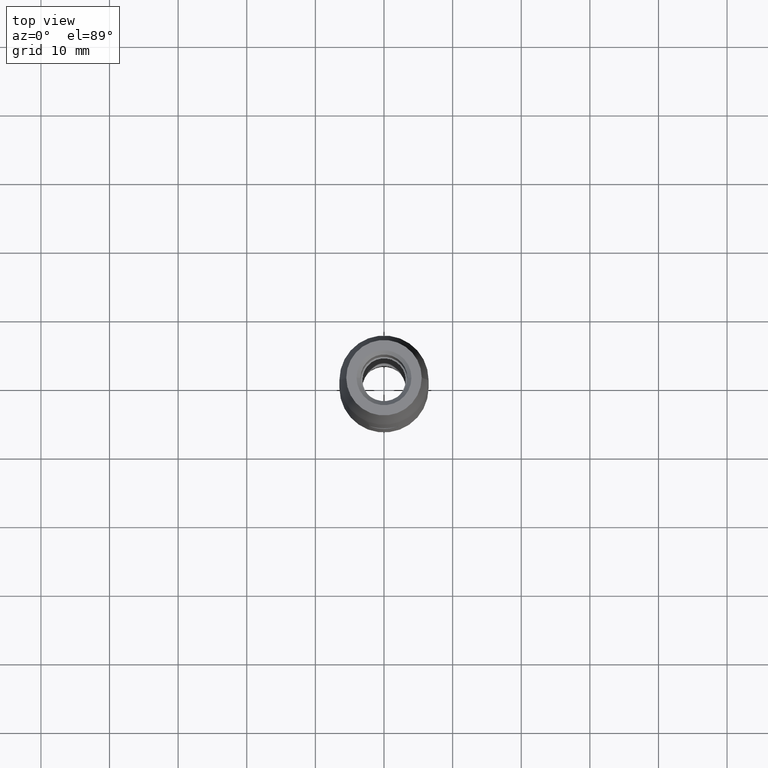
[diagram: clean part render]
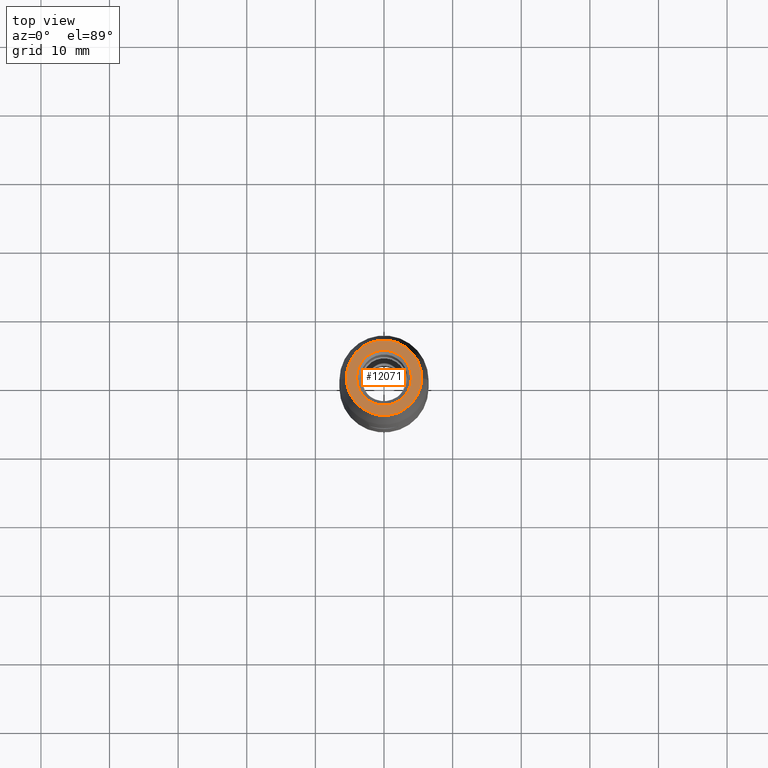
[diagram: same view with one face highlighted and labeled with its STEP entity id]
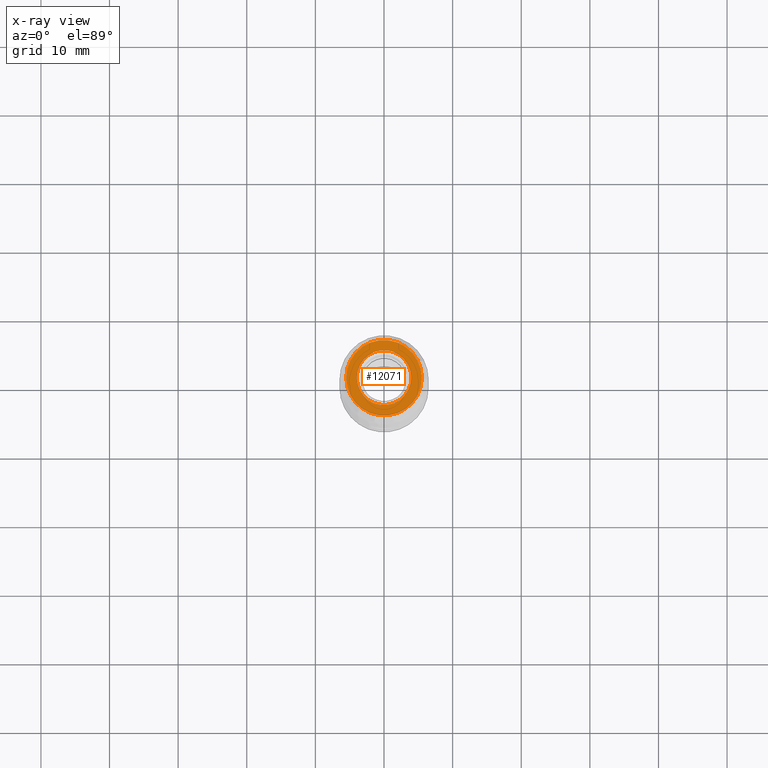
[diagram: x-ray of the same camera — body ghosted, the highlighted face saturated]
A machine part, top view. The second image highlights one B-rep face of the part: STEP entity #12071.
The next image is the same camera in x-ray: the body ghosted, the highlighted face saturated — about 0% of this face is hidden behind the body in this view.
In plain terms, the highlighted planar face has unit normal (0, 0, -1).
Its self-contained STEP definition (entity closure, byte-faithful):
#173 = DIRECTION ( 'NONE',  ( 0.0000000000000000000, 0.0000000000000000000, -1.000000000000000000 ) ) ;
#309 = FACE_OUTER_BOUND ( 'NONE', #11373, .T. ) ;
#358 = CIRCLE ( 'NONE', #417, 5.500000000000000000 ) ;
#417 = AXIS2_PLACEMENT_3D ( 'NONE', #3006, #6975, #7995 ) ;
#463 = CARTESIAN_POINT ( 'NONE',  ( 5.500000000000000000, 7.347880794884114800E-016, 52.50000000000000000 ) ) ;
#647 = DIRECTION ( 'NONE',  ( -0.0000000000000000000, -0.0000000000000000000, 1.000000000000000000 ) ) ;
#1139 = EDGE_LOOP ( 'NONE', ( #1296, #6574 ) ) ;
#1296 = ORIENTED_EDGE ( 'NONE', *, *, #2030, .T. ) ;
#1572 = CARTESIAN_POINT ( 'NONE',  ( 0.0000000000000000000, 0.0000000000000000000, 52.50000000000000000 ) ) ;
#1937 = CARTESIAN_POINT ( 'NONE',  ( 0.0000000000000000000, 0.0000000000000000000, 52.50000000000000700 ) ) ;
#2030 = EDGE_CURVE ( 'NONE', #10782, #3606, #2611, .T. ) ;
#2350 = DIRECTION ( 'NONE',  ( -1.000000000000000000, 0.0000000000000000000, 0.0000000000000000000 ) ) ;
#2611 = CIRCLE ( 'NONE', #4028, 4.000000000000017800 ) ;
#2718 = AXIS2_PLACEMENT_3D ( 'NONE', #1572, #647, #9682 ) ;
#2987 = EDGE_CURVE ( 'NONE', #3606, #10782, #11610, .T. ) ;
#3006 = CARTESIAN_POINT ( 'NONE',  ( 0.0000000000000000000, 0.0000000000000000000, 52.50000000000000000 ) ) ;
#3467 = DIRECTION ( 'NONE',  ( -1.000000000000000000, 0.0000000000000000000, -0.0000000000000000000 ) ) ;
#3606 = VERTEX_POINT ( 'NONE', #7872 ) ;
#3647 = DIRECTION ( 'NONE',  ( -1.000000000000000000, 0.0000000000000000000, 0.0000000000000000000 ) ) ;
#4028 = AXIS2_PLACEMENT_3D ( 'NONE', #4283, #173, #2350 ) ;
#4283 = CARTESIAN_POINT ( 'NONE',  ( 0.0000000000000000000, 0.0000000000000000000, 52.50000000000000700 ) ) ;
#5036 = FACE_BOUND ( 'NONE', #1139, .T. ) ;
#5392 = CARTESIAN_POINT ( 'NONE',  ( 4.000000000000017800, 0.0000000000000000000, 52.50000000000000700 ) ) ;
#5980 = DIRECTION ( 'NONE',  ( 0.0000000000000000000, 0.0000000000000000000, -1.000000000000000000 ) ) ;
#6574 = ORIENTED_EDGE ( 'NONE', *, *, #2987, .T. ) ;
#6841 = AXIS2_PLACEMENT_3D ( 'NONE', #1937, #5980, #3647 ) ;
#6931 = CIRCLE ( 'NONE', #2718, 5.500000000000000000 ) ;
#6975 = DIRECTION ( 'NONE',  ( -0.0000000000000000000, -0.0000000000000000000, 1.000000000000000000 ) ) ;
#7231 = EDGE_CURVE ( 'NONE', #9774, #8707, #358, .T. ) ;
#7872 = CARTESIAN_POINT ( 'NONE',  ( -4.000000000000017800, 4.898587196589434500E-016, 52.50000000000000700 ) ) ;
#7995 = DIRECTION ( 'NONE',  ( 1.000000000000000000, 0.0000000000000000000, 0.0000000000000000000 ) ) ;
#8381 = PLANE ( 'NONE',  #11934 ) ;
#8707 = VERTEX_POINT ( 'NONE', #12662 ) ;
#8855 = ORIENTED_EDGE ( 'NONE', *, *, #12316, .T. ) ;
#9280 = ORIENTED_EDGE ( 'NONE', *, *, #7231, .T. ) ;
#9461 = DIRECTION ( 'NONE',  ( 0.0000000000000000000, 0.0000000000000000000, -1.000000000000000000 ) ) ;
#9682 = DIRECTION ( 'NONE',  ( 1.000000000000000000, 0.0000000000000000000, 0.0000000000000000000 ) ) ;
#9774 = VERTEX_POINT ( 'NONE', #463 ) ;
#10442 = CARTESIAN_POINT ( 'NONE',  ( 0.0000000000000000000, 5.500000000000000000, 52.50000000000000700 ) ) ;
#10782 = VERTEX_POINT ( 'NONE', #5392 ) ;
#11373 = EDGE_LOOP ( 'NONE', ( #8855, #9280 ) ) ;
#11610 = CIRCLE ( 'NONE', #6841, 4.000000000000017800 ) ;
#11934 = AXIS2_PLACEMENT_3D ( 'NONE', #10442, #9461, #3467 ) ;
#12071 = ADVANCED_FACE ( 'NONE', ( #5036, #309 ), #8381, .F. ) ;
#12316 = EDGE_CURVE ( 'NONE', #8707, #9774, #6931, .T. ) ;
#12662 = CARTESIAN_POINT ( 'NONE',  ( -5.500000000000000000, 0.0000000000000000000, 52.50000000000000000 ) ) ;